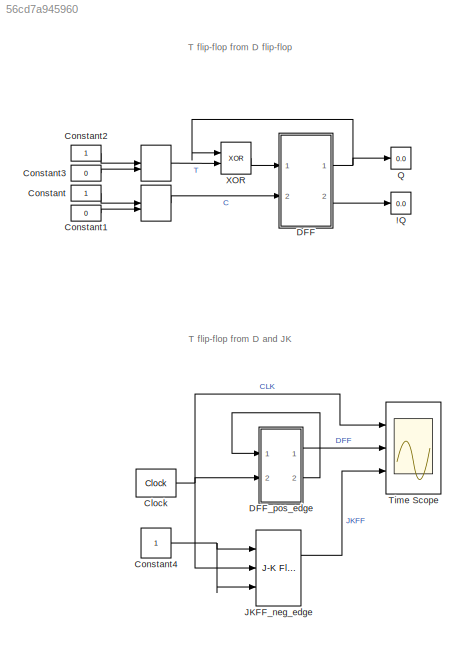
MODEL slx_56cd7a945960
KIND model
CONFIG AbsTol = auto
CONFIG EnableMultiTasking = off
CONFIG FixedStep = 1
CONFIG MaxStep = 1
CONFIG MinStep = auto
CONFIG RelTol = 1e-3
CONFIG SampleTimeConstraint = Unconstrained
CONFIG Solver = FixedStepAuto
CONFIG SolverName = FixedStepAuto
CONFIG StartTime = 0.0
CONFIG StopTime = inf
BLOCK [ManualSwitch]  
BLOCK [Display] !Q
  Decimation = 1
  Ports = [1]
BLOCK [Reference] Clock  REF=simulink_extras/Flip Flops/Clock
  Ports = [0, 1]
  SourceBlock = simulink_extras/Flip Flops/Clock
  SourceProductBaseCode = SL
  SourceProductName = Simulink
  SourceType = Digital clock
BLOCK [Constant] Constant
  OutDataTypeStr = boolean
BLOCK [Constant] Constant1
  OutDataTypeStr = boolean
  Value = 0
BLOCK [Constant] Constant2
  OutDataTypeStr = boolean
BLOCK [Constant] Constant3
  OutDataTypeStr = boolean
  Value = 0
BLOCK [Constant] Constant4
  LockScale = on
  OutDataTypeStr = boolean
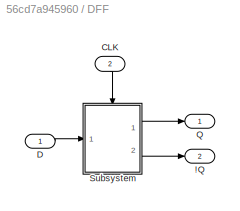
BLOCK [SubSystem] DFF
  Ports = [2, 2]
  RequestExecContextInheritance = off
BLOCK [Outport] DFF/!Q
  IconDisplay = Port number
  InitialOutput = 1
  Port = 2
  VectorParamsAs1DForOutWhenUnconnected = off
BLOCK [Inport] DFF/CLK
  IconDisplay = Port number
  Port = 2
BLOCK [Inport] DFF/D
  IconDisplay = Port number
BLOCK [Outport] DFF/Q
  IconDisplay = Port number
  InitialOutput = 0
  VectorParamsAs1DForOutWhenUnconnected = off
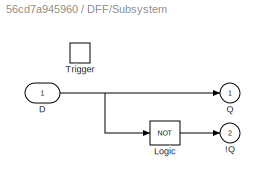
BLOCK [SubSystem] DFF/Subsystem
  Ports = [1, 2, 0, 1]
  RequestExecContextInheritance = off
BLOCK [Outport] DFF/Subsystem/!Q
  IconDisplay = Port number
  InitialOutput = 1
  OutputWhenDisabled = reset
  Port = 2
  VectorParamsAs1DForOutWhenUnconnected = off
BLOCK [Inport] DFF/Subsystem/D
  IconDisplay = Port number
  LatchByDelayingOutsideSignal = on
BLOCK [Logic] DFF/Subsystem/Logic
  Inputs = 1
  Operator = NOT
  Ports = [1, 1]
BLOCK [Outport] DFF/Subsystem/Q
  IconDisplay = Port number
  InitialOutput = 0
  OutputWhenDisabled = reset
  VectorParamsAs1DForOutWhenUnconnected = off
BLOCK [TriggerPort] DFF/Subsystem/Trigger
  Ports = []
  StatesWhenEnabling = reset
  VariantControl = Variant
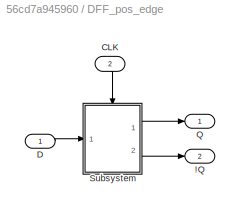
BLOCK [SubSystem] DFF_pos_edge
  Ports = [2, 2]
  RequestExecContextInheritance = off
BLOCK [Outport] DFF_pos_edge/!Q
  IconDisplay = Port number
  InitialOutput = 1
  Port = 2
  VectorParamsAs1DForOutWhenUnconnected = off
BLOCK [Inport] DFF_pos_edge/CLK
  IconDisplay = Port number
  Port = 2
BLOCK [Inport] DFF_pos_edge/D
  IconDisplay = Port number
BLOCK [Outport] DFF_pos_edge/Q
  IconDisplay = Port number
  InitialOutput = 0
  VectorParamsAs1DForOutWhenUnconnected = off
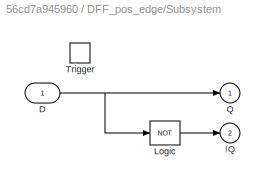
BLOCK [SubSystem] DFF_pos_edge/Subsystem
  Ports = [1, 2, 0, 1]
  RequestExecContextInheritance = off
BLOCK [Outport] DFF_pos_edge/Subsystem/!Q
  IconDisplay = Port number
  InitialOutput = 1
  OutputWhenDisabled = reset
  Port = 2
  VectorParamsAs1DForOutWhenUnconnected = off
BLOCK [Inport] DFF_pos_edge/Subsystem/D
  IconDisplay = Port number
  LatchByDelayingOutsideSignal = on
BLOCK [Logic] DFF_pos_edge/Subsystem/Logic
  Inputs = 1
  Operator = NOT
  Ports = [1, 1]
BLOCK [Outport] DFF_pos_edge/Subsystem/Q
  IconDisplay = Port number
  InitialOutput = 0
  OutputWhenDisabled = reset
  VectorParamsAs1DForOutWhenUnconnected = off
BLOCK [TriggerPort] DFF_pos_edge/Subsystem/Trigger
  Ports = []
  StatesWhenEnabling = reset
  VariantControl = Variant
BLOCK [Reference] JKFF_neg_edge  REF=simulink_extras/Flip Flops/J-K
Flip-Flop
  Ports = [3, 2]
  SourceBlock = simulink_extras/Flip Flops/J-K\nFlip-Flop
  SourceProductBaseCode = SL
  SourceProductName = Simulink
  SourceType = JKFlipFlop
BLOCK [Display] Q
  Decimation = 1
  Ports = [1]
BLOCK [Scope] Time Scope
  DefaultConfigurationName = spbscopes.TimeScopeBlockCfg
  Floating = off
  NumInputPorts = 3
  Ports = [3]
  ScopeSpecificationString = spbscopes.TimeScopeBlockCfg('CurrentConfiguration', extmgr.ConfigurationSet(extmgr.Configuration('Core','General UI',true),extmgr.Configuration('Core','Source UI',true),extmgr.Configuration('Sources','WiredSimulink',true),extmgr.Configuration('Visuals','Time Domain',true,'DisplayLayoutDimensions',[3 1],'DisplayPropertyDefaults',struct('YLabelReal','Amplitude','XGrid',true,'YGrid',true,'PlotMagPhas...<+2707ch>
  UserDataPersistent = on
BLOCK [Logic] XOR
  AllPortsSameDT = off
  IconShape = distinctive
  Operator = XOR
  OutDataTypeStr = boolean
  Ports = [2, 1]
ANNOTATION (root): T flip-flop from D and JK
ANNOTATION (root): T flip-flop from D flip-flop
NET  :1 -> DFF:2, XOR:2
NET Clock:1 -> DFF_pos_edge:2, JKFF_neg_edge:2, Time Scope:1
LINE Constant1:1 ->  :2
LINE Constant2:1 ->  :1
LINE Constant3:1 ->  :2
NET Constant4:1 -> JKFF_neg_edge:1, JKFF_neg_edge:3
LINE Constant:1 ->  :1
LINE DFF/CLK:1 -> DFF/Subsystem:trigger
LINE DFF/D:1 -> DFF/Subsystem:1
NET DFF/Subsystem/D:1 -> DFF/Subsystem/Logic:1, DFF/Subsystem/Q:1
LINE DFF/Subsystem/Logic:1 -> DFF/Subsystem/!Q:1
LINE DFF/Subsystem:1 -> DFF/Q:1
LINE DFF/Subsystem:2 -> DFF/!Q:1
NET DFF:1 -> Q:1, XOR:1
LINE DFF:2 -> !Q:1
LINE DFF_pos_edge/CLK:1 -> DFF_pos_edge/Subsystem:trigger
LINE DFF_pos_edge/D:1 -> DFF_pos_edge/Subsystem:1
NET DFF_pos_edge/Subsystem/D:1 -> DFF_pos_edge/Subsystem/Logic:1, DFF_pos_edge/Subsystem/Q:1
LINE DFF_pos_edge/Subsystem/Logic:1 -> DFF_pos_edge/Subsystem/!Q:1
LINE DFF_pos_edge/Subsystem:1 -> DFF_pos_edge/Q:1
LINE DFF_pos_edge/Subsystem:2 -> DFF_pos_edge/!Q:1
LINE DFF_pos_edge:1 -> Time Scope:2
LINE DFF_pos_edge:2 -> DFF_pos_edge:1
LINE JKFF_neg_edge:1 -> Time Scope:3
LINE XOR:1 -> DFF:1
note: NET lines group one-source signal fan-out (src -> all destinations, sorted); 1:1 wires keep LINE
